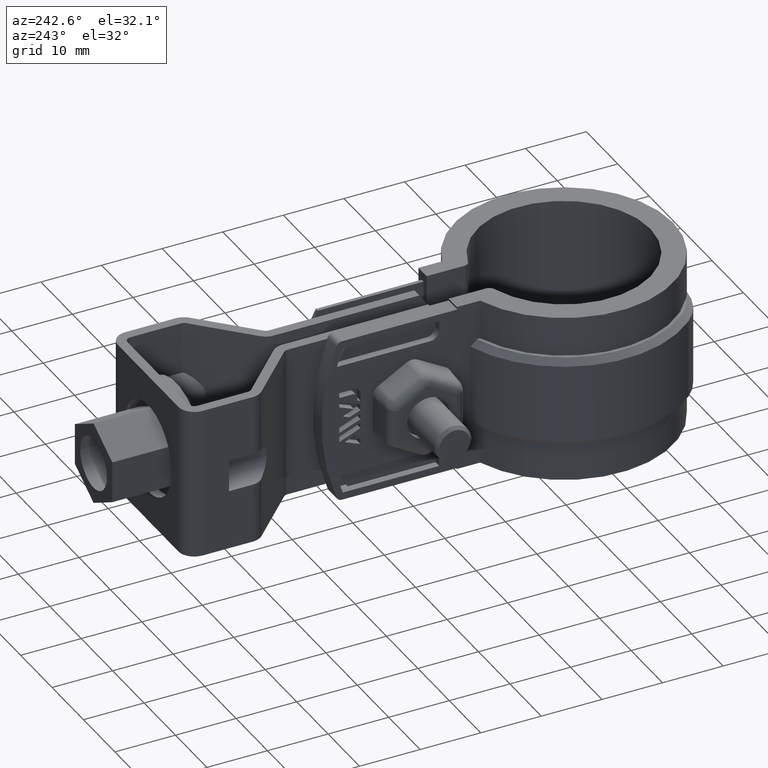
[diagram: clean part render]
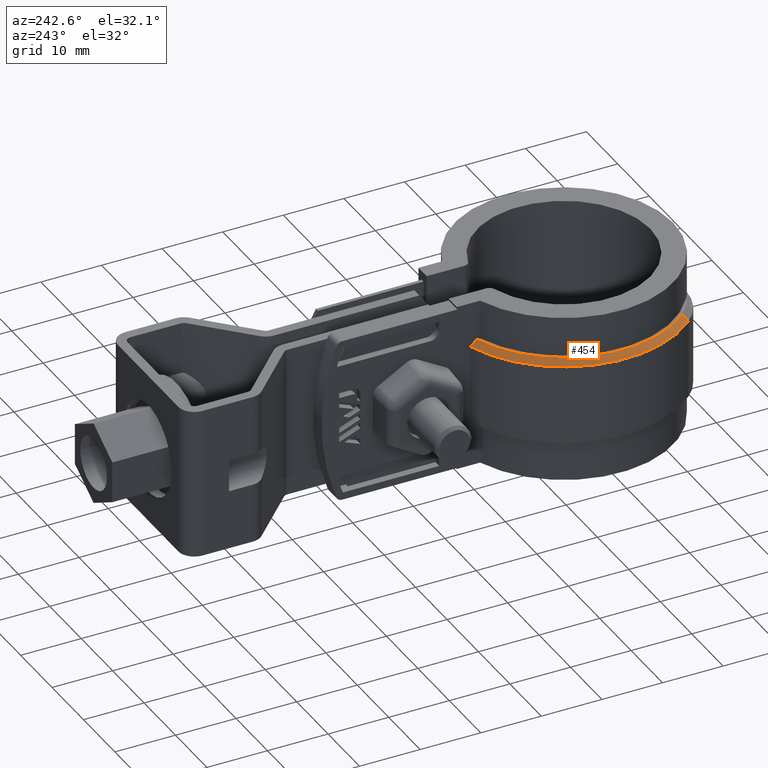
[diagram: same view with one face highlighted and labeled with its STEP entity id]
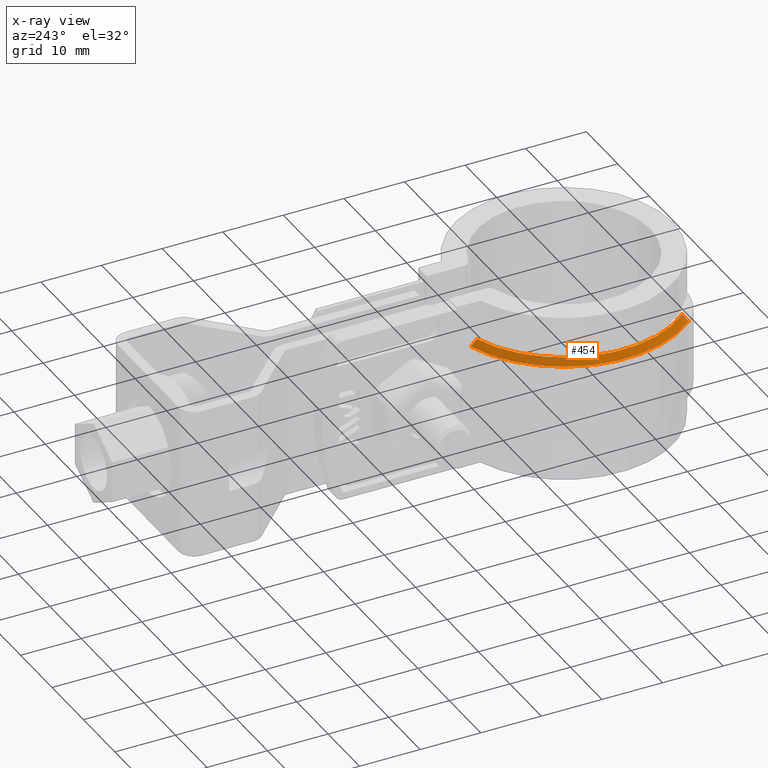
[diagram: x-ray of the same camera — body ghosted, the highlighted face saturated]
A machine part, auxiliary view. The second image highlights one B-rep face of the part: STEP entity #454.
The next image is the same camera in x-ray: the body ghosted, the highlighted face saturated — about 0% of this face is hidden behind the body in this view.
In plain terms, the highlighted conical surface has half-angle 45 deg.
Its self-contained STEP definition (entity closure, byte-faithful):
#454 = ADVANCED_FACE( '', ( #878 ), #879, .T. );
#878 = FACE_OUTER_BOUND( '', #2015, .T. );
#879 = CONICAL_SURFACE( '', #2016, 18.5350000000000, 0.785398163397447 );
#2015 = EDGE_LOOP( '', ( #4524, #4525, #4526, #4527 ) );
#2016 = AXIS2_PLACEMENT_3D( '', #4528, #4529, #4530 );
#4524 = ORIENTED_EDGE( '', *, *, #6605, .F. );
#4525 = ORIENTED_EDGE( '', *, *, #6765, .F. );
#4526 = ORIENTED_EDGE( '', *, *, #6780, .F. );
#4527 = ORIENTED_EDGE( '', *, *, #6783, .F. );
#4528 = CARTESIAN_POINT( '', ( -8.67361737988404E-016, 0.000000000000000, -5.00000000000000 ) );
#4529 = DIRECTION( '', ( 0.000000000000000, 0.000000000000000, -1.00000000000000 ) );
#4530 = DIRECTION( '', ( -1.00000000000000, 0.000000000000000, 0.000000000000000 ) );
#6605 = EDGE_CURVE( '', #7619, #7621, #7622, .T. );
#6765 = EDGE_CURVE( '', #7894, #7619, #7896, .F. );
#6780 = EDGE_CURVE( '', #7916, #7894, #7917, .T. );
#6783 = EDGE_CURVE( '', #7621, #7916, #7920, .T. );
#7619 = VERTEX_POINT( '', #9873 );
#7621 = VERTEX_POINT( '', #9876 );
#7622 = B_SPLINE_CURVE_WITH_KNOTS( '', 3, ( #9877, #9878, #9879, #9880 ), .UNSPECIFIED., .F., .F., ( 4, 4 ), ( 3.87895961444886E-018, 0.00145414847532090 ), .UNSPECIFIED. );
#7894 = VERTEX_POINT( '', #10914 );
#7896 = CIRCLE( '', #10917, 19.5350000000000 );
#7916 = VERTEX_POINT( '', #10941 );
#7917 = LINE( '', #10942, #10943 );
#7920 = CIRCLE( '', #10946, 18.5350000000000 );
#9873 = CARTESIAN_POINT( '', ( -6.10000000000001, 18.5581848519730, -6.00000000000000 ) );
#9876 = CARTESIAN_POINT( '', ( -6.10000000000000, 17.5024633980477, -5.00000000000000 ) );
#9877 = CARTESIAN_POINT( '', ( -6.10000000000001, 18.5581848519730, -6.00000000000000 ) );
#9878 = CARTESIAN_POINT( '', ( -6.10000000000001, 18.2067653264390, -5.66615262270526 ) );
#9879 = CARTESIAN_POINT( '', ( -6.10000000000000, 17.8548851318032, -5.33278923634920 ) );
#9880 = CARTESIAN_POINT( '', ( -6.10000000000000, 17.5024633980477, -5.00000000000000 ) );
#10914 = CARTESIAN_POINT( '', ( -14.5540076052262, -13.0306211527700, -6.00000000000000 ) );
#10917 = AXIS2_PLACEMENT_3D( '', #12786, #12787, #12788 );
#10941 = CARTESIAN_POINT( '', ( -13.8089854600905, -12.3635814213766, -5.00000000000000 ) );
#10942 = CARTESIAN_POINT( '', ( -13.8089854600905, -12.3635814213766, -5.00000000000000 ) );
#10943 = VECTOR( '', #12823, 1000.00000000000 );
#10946 = AXIS2_PLACEMENT_3D( '', #12830, #12831, #12832 );
#12786 = CARTESIAN_POINT( '', ( -8.67361737988404E-016, 0.000000000000000, -6.00000000000000 ) );
#12787 = DIRECTION( '', ( 0.000000000000000, 0.000000000000000, 1.00000000000000 ) );
#12788 = DIRECTION( '', ( 1.00000000000000, 0.000000000000000, 0.000000000000000 ) );
#12823 = DIRECTION( '', ( -0.526810210959614, -0.471668317389122, -0.707106781186548 ) );
#12830 = CARTESIAN_POINT( '', ( -8.67361737988404E-016, 0.000000000000000, -5.00000000000000 ) );
#12831 = DIRECTION( '', ( 0.000000000000000, 0.000000000000000, 1.00000000000000 ) );
#12832 = DIRECTION( '', ( 1.00000000000000, 0.000000000000000, 0.000000000000000 ) );